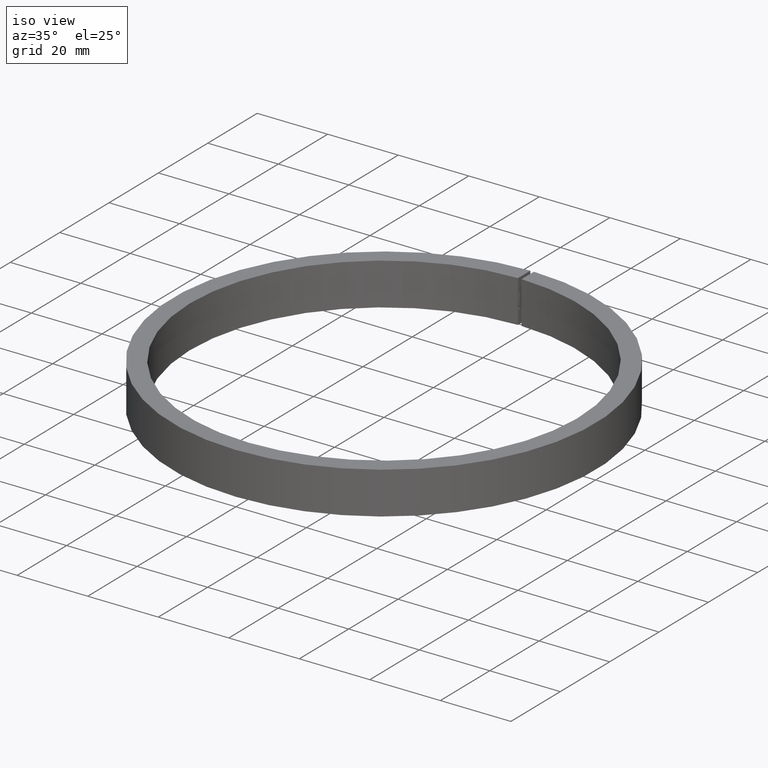
[diagram: clean part render]
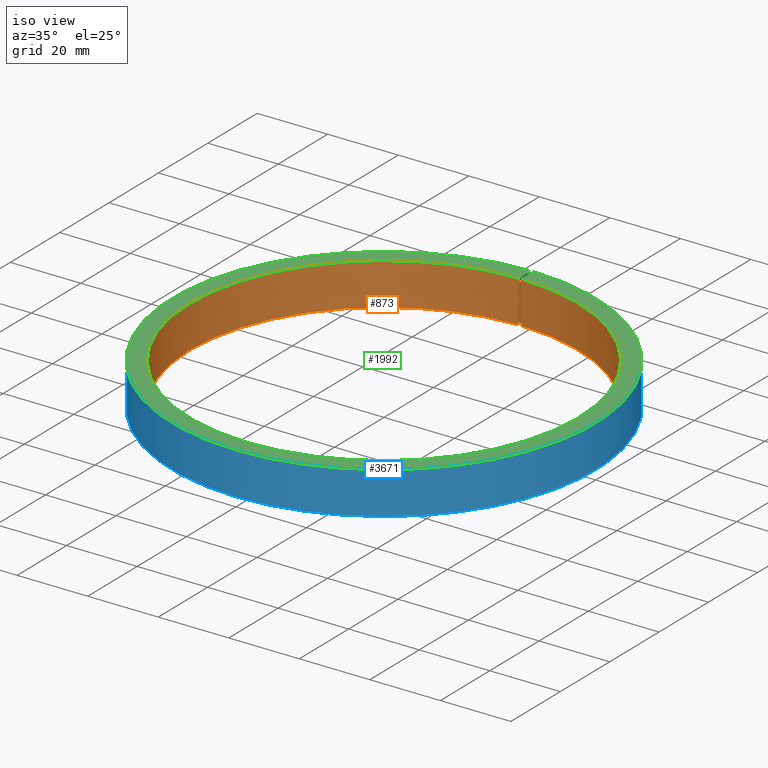
[diagram: same view with three faces highlighted in distinct colors, each labeled with its STEP entity id]
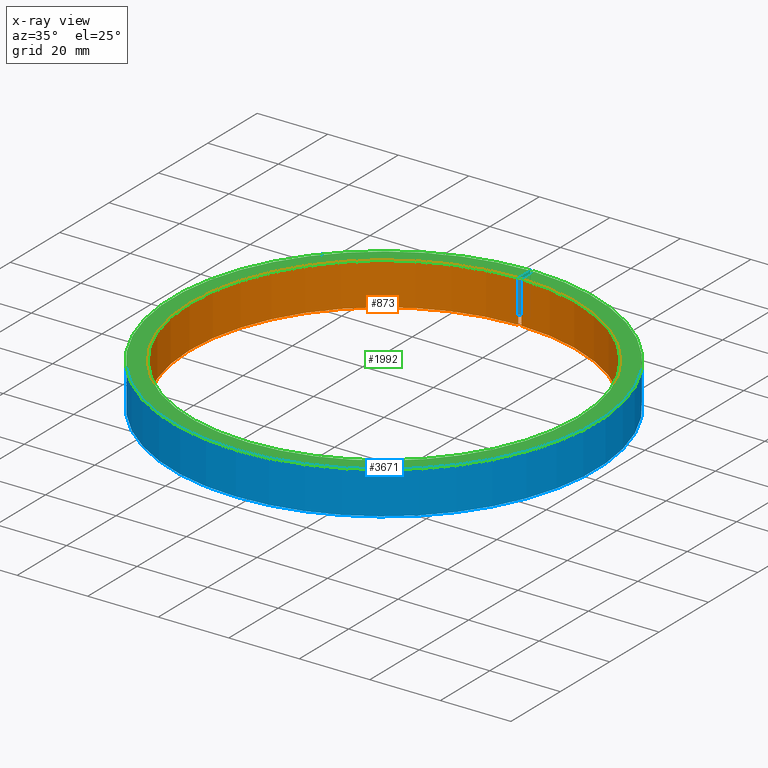
[diagram: x-ray of the same camera — body ghosted, the three highlighted faces saturated]
A machine part, iso view with three faces highlighted in distinct colors.
The next image is the same camera in x-ray (body ghosted, the three faces saturated) — at least one of them is partly hidden behind the body in this view.
Their STEP definitions:

[orange] entity #873 — the highlighted cylindrical surface (partial cylindrical patch) has radius 55 mm, axis along (-0, -0, -1).
#145 = CARTESIAN_POINT ( 'NONE',  ( 0.000000000000000000, 0.000000000000000000, -6.000000000000002665 ) ) ;
#377 = LINE ( 'NONE', #5961, #6549 ) ;
#696 = EDGE_CURVE ( 'NONE', #4806, #8284, #3166, .T. ) ;
#743 = CARTESIAN_POINT ( 'NONE',  ( 0.5000000000000000000, 54.99772722576815909, -6.000000000000003553 ) ) ;
#873 = ADVANCED_FACE ( 'NONE', ( #12154 ), #8318, .F. ) ;
#981 = EDGE_CURVE ( 'NONE', #4032, #4806, #377, .T. ) ;
#1344 = DIRECTION ( 'NONE',  ( -0.000000000000000000, -0.000000000000000000, 1.000000000000000000 ) ) ;
#2161 = ORIENTED_EDGE ( 'NONE', *, *, #5794, .T. ) ;
#2414 = CARTESIAN_POINT ( 'NONE',  ( -0.5000000000000000000, 54.99772722576815909, -6.000000000000003553 ) ) ;
#3003 = CIRCLE ( 'NONE', #4110, 55.00000000000000000 ) ;
#3166 = CIRCLE ( 'NONE', #11763, 55.00000000000000000 ) ;
#3668 = CARTESIAN_POINT ( 'NONE',  ( 0.000000000000000000, 0.000000000000000000, 0.000000000000000000 ) ) ;
#4032 = VERTEX_POINT ( 'NONE', #743 ) ;
#4110 = AXIS2_PLACEMENT_3D ( 'NONE', #145, #10375, #11471 ) ;
#4131 = CARTESIAN_POINT ( 'NONE',  ( 0.5000000000000000000, 54.99772722576815909, 5.999999999999997335 ) ) ;
#4621 = DIRECTION ( 'NONE',  ( -0.000000000000000000, -0.000000000000000000, -1.000000000000000000 ) ) ;
#4806 = VERTEX_POINT ( 'NONE', #4131 ) ;
#5385 = DIRECTION ( 'NONE',  ( -1.000000000000000000, 0.000000000000000000, 0.000000000000000000 ) ) ;
#5794 = EDGE_CURVE ( 'NONE', #4032, #12185, #3003, .T. ) ;
#5894 = CARTESIAN_POINT ( 'NONE',  ( -0.5000000000000000000, 54.99772722576815909, -6.000000000000003553 ) ) ;
#5961 = CARTESIAN_POINT ( 'NONE',  ( 0.5000000000000000000, 54.99772722576815909, -6.000000000000003553 ) ) ;
#6484 = VECTOR ( 'NONE', #7893, 1000.000000000000000 ) ;
#6549 = VECTOR ( 'NONE', #1344, 1000.000000000000000 ) ;
#6611 = DIRECTION ( 'NONE',  ( -1.000000000000000000, 0.000000000000000000, 0.000000000000000000 ) ) ;
#6867 = AXIS2_PLACEMENT_3D ( 'NONE', #3668, #4621, #6611 ) ;
#7893 = DIRECTION ( 'NONE',  ( -0.000000000000000000, -0.000000000000000000, 1.000000000000000000 ) ) ;
#8284 = VERTEX_POINT ( 'NONE', #8585 ) ;
#8318 = CYLINDRICAL_SURFACE ( 'NONE', #6867, 55.00000000000000000 ) ;
#8585 = CARTESIAN_POINT ( 'NONE',  ( -0.5000000000000000000, 54.99772722576815909, 5.999999999999997335 ) ) ;
#8787 = EDGE_CURVE ( 'NONE', #12185, #8284, #11492, .T. ) ;
#9727 = EDGE_LOOP ( 'NONE', ( #9785, #11371, #2161, #9902 ) ) ;
#9785 = ORIENTED_EDGE ( 'NONE', *, *, #696, .F. ) ;
#9902 = ORIENTED_EDGE ( 'NONE', *, *, #8787, .T. ) ;
#10115 = CARTESIAN_POINT ( 'NONE',  ( 0.000000000000000000, 0.000000000000000000, 5.999999999999997335 ) ) ;
#10375 = DIRECTION ( 'NONE',  ( -0.000000000000000000, -0.000000000000000000, -1.000000000000000000 ) ) ;
#11006 = DIRECTION ( 'NONE',  ( -0.000000000000000000, -0.000000000000000000, -1.000000000000000000 ) ) ;
#11371 = ORIENTED_EDGE ( 'NONE', *, *, #981, .F. ) ;
#11471 = DIRECTION ( 'NONE',  ( -1.000000000000000000, 0.000000000000000000, 0.000000000000000000 ) ) ;
#11492 = LINE ( 'NONE', #2414, #6484 ) ;
#11763 = AXIS2_PLACEMENT_3D ( 'NONE', #10115, #11006, #5385 ) ;
#12154 = FACE_OUTER_BOUND ( 'NONE', #9727, .T. ) ;
#12185 = VERTEX_POINT ( 'NONE', #5894 ) ;

[blue] entity #3671 — the highlighted cylindrical surface (partial cylindrical patch) has radius 60 mm, axis along (-0, -0, -1).
#91 = DIRECTION ( 'NONE',  ( -0.000000000000000000, -0.000000000000000000, -1.000000000000000000 ) ) ;
#581 = AXIS2_PLACEMENT_3D ( 'NONE', #10681, #5039, #11620 ) ;
#676 = LINE ( 'NONE', #5067, #2444 ) ;
#1047 = EDGE_CURVE ( 'NONE', #8450, #7820, #676, .T. ) ;
#1103 = VERTEX_POINT ( 'NONE', #6857 ) ;
#1199 = VECTOR ( 'NONE', #1446, 1000.000000000000000 ) ;
#1371 = EDGE_LOOP ( 'NONE', ( #2262, #6223, #7123, #2400 ) ) ;
#1446 = DIRECTION ( 'NONE',  ( -0.000000000000000000, -0.000000000000000000, 1.000000000000000000 ) ) ;
#1515 = CIRCLE ( 'NONE', #581, 60.00000000000000000 ) ;
#2262 = ORIENTED_EDGE ( 'NONE', *, *, #6374, .F. ) ;
#2400 = ORIENTED_EDGE ( 'NONE', *, *, #1047, .F. ) ;
#2444 = VECTOR ( 'NONE', #8834, 1000.000000000000000 ) ;
#2468 = DIRECTION ( 'NONE',  ( -1.000000000000000000, 0.000000000000000000, 0.000000000000000000 ) ) ;
#3671 = ADVANCED_FACE ( 'NONE', ( #7992 ), #3900, .T. ) ;
#3900 = CYLINDRICAL_SURFACE ( 'NONE', #10103, 60.00000000000000000 ) ;
#3964 = CARTESIAN_POINT ( 'NONE',  ( 0.000000000000000000, 0.000000000000000000, 5.999999999999996447 ) ) ;
#4172 = CARTESIAN_POINT ( 'NONE',  ( 0.5000000000000000000, 59.99791663049642665, -6.000000000000003553 ) ) ;
#4812 = DIRECTION ( 'NONE',  ( -1.000000000000000000, 0.000000000000000000, 0.000000000000000000 ) ) ;
#5039 = DIRECTION ( 'NONE',  ( -0.000000000000000000, -0.000000000000000000, -1.000000000000000000 ) ) ;
#5067 = CARTESIAN_POINT ( 'NONE',  ( -0.5000000000000000000, 59.99791663049642665, -6.000000000000003553 ) ) ;
#5254 = CARTESIAN_POINT ( 'NONE',  ( 0.5000000000000000000, 59.99791663049643375, 5.999999999999996447 ) ) ;
#6223 = ORIENTED_EDGE ( 'NONE', *, *, #9745, .T. ) ;
#6374 = EDGE_CURVE ( 'NONE', #1103, #8450, #1515, .T. ) ;
#6857 = CARTESIAN_POINT ( 'NONE',  ( 0.5000000000000000000, 59.99791663049642665, -6.000000000000003553 ) ) ;
#7123 = ORIENTED_EDGE ( 'NONE', *, *, #12059, .T. ) ;
#7820 = VERTEX_POINT ( 'NONE', #10338 ) ;
#7992 = FACE_OUTER_BOUND ( 'NONE', #1371, .T. ) ;
#8107 = CARTESIAN_POINT ( 'NONE',  ( 0.000000000000000000, 0.000000000000000000, 0.000000000000000000 ) ) ;
#8209 = AXIS2_PLACEMENT_3D ( 'NONE', #3964, #91, #4812 ) ;
#8356 = CIRCLE ( 'NONE', #8209, 60.00000000000000000 ) ;
#8450 = VERTEX_POINT ( 'NONE', #11875 ) ;
#8834 = DIRECTION ( 'NONE',  ( -0.000000000000000000, -0.000000000000000000, 1.000000000000000000 ) ) ;
#9745 = EDGE_CURVE ( 'NONE', #1103, #10484, #9846, .T. ) ;
#9846 = LINE ( 'NONE', #4172, #1199 ) ;
#10103 = AXIS2_PLACEMENT_3D ( 'NONE', #8107, #11873, #2468 ) ;
#10338 = CARTESIAN_POINT ( 'NONE',  ( -0.5000000000000000000, 59.99791663049642665, 5.999999999999997335 ) ) ;
#10484 = VERTEX_POINT ( 'NONE', #5254 ) ;
#10681 = CARTESIAN_POINT ( 'NONE',  ( 0.000000000000000000, 0.000000000000000000, -6.000000000000003553 ) ) ;
#11620 = DIRECTION ( 'NONE',  ( -1.000000000000000000, 0.000000000000000000, 0.000000000000000000 ) ) ;
#11873 = DIRECTION ( 'NONE',  ( -0.000000000000000000, -0.000000000000000000, -1.000000000000000000 ) ) ;
#11875 = CARTESIAN_POINT ( 'NONE',  ( -0.5000000000000000000, 59.99791663049643375, -6.000000000000003553 ) ) ;
#12059 = EDGE_CURVE ( 'NONE', #10484, #7820, #8356, .T. ) ;

[green] entity #1992 — the highlighted planar face has unit normal (-0, 0, -1).
#24 = DIRECTION ( 'NONE',  ( -0.000000000000000000, 0.000000000000000000, -1.000000000000000000 ) ) ;
#91 = DIRECTION ( 'NONE',  ( -0.000000000000000000, -0.000000000000000000, -1.000000000000000000 ) ) ;
#696 = EDGE_CURVE ( 'NONE', #4806, #8284, #3166, .T. ) ;
#1428 = CARTESIAN_POINT ( 'NONE',  ( -0.5000000000000000000, 0.000000000000000000, 5.999999999999997335 ) ) ;
#1477 = VECTOR ( 'NONE', #1644, 1000.000000000000000 ) ;
#1644 = DIRECTION ( 'NONE',  ( 0.000000000000000000, 1.000000000000000000, -0.000000000000000000 ) ) ;
#1992 = ADVANCED_FACE ( 'NONE', ( #2301 ), #2861, .F. ) ;
#2259 = ORIENTED_EDGE ( 'NONE', *, *, #696, .T. ) ;
#2301 = FACE_OUTER_BOUND ( 'NONE', #11965, .T. ) ;
#2861 = PLANE ( 'NONE',  #11506 ) ;
#2977 = DIRECTION ( 'NONE',  ( 0.000000000000000000, 1.000000000000000000, -0.000000000000000000 ) ) ;
#3166 = CIRCLE ( 'NONE', #11763, 55.00000000000000000 ) ;
#3792 = DIRECTION ( 'NONE',  ( -1.000000000000000000, 0.000000000000000000, 0.000000000000000000 ) ) ;
#3964 = CARTESIAN_POINT ( 'NONE',  ( 0.000000000000000000, 0.000000000000000000, 5.999999999999996447 ) ) ;
#4131 = CARTESIAN_POINT ( 'NONE',  ( 0.5000000000000000000, 54.99772722576815909, 5.999999999999997335 ) ) ;
#4608 = EDGE_CURVE ( 'NONE', #8284, #7820, #6065, .T. ) ;
#4806 = VERTEX_POINT ( 'NONE', #4131 ) ;
#4812 = DIRECTION ( 'NONE',  ( -1.000000000000000000, 0.000000000000000000, 0.000000000000000000 ) ) ;
#5254 = CARTESIAN_POINT ( 'NONE',  ( 0.5000000000000000000, 59.99791663049643375, 5.999999999999996447 ) ) ;
#5385 = DIRECTION ( 'NONE',  ( -1.000000000000000000, 0.000000000000000000, 0.000000000000000000 ) ) ;
#5643 = CARTESIAN_POINT ( 'NONE',  ( 0.000000000000000000, -55.00000000000000000, 5.999999999999996447 ) ) ;
#6065 = LINE ( 'NONE', #1428, #7540 ) ;
#6812 = ORIENTED_EDGE ( 'NONE', *, *, #12059, .F. ) ;
#7540 = VECTOR ( 'NONE', #2977, 1000.000000000000000 ) ;
#7820 = VERTEX_POINT ( 'NONE', #10338 ) ;
#8209 = AXIS2_PLACEMENT_3D ( 'NONE', #3964, #91, #4812 ) ;
#8284 = VERTEX_POINT ( 'NONE', #8585 ) ;
#8356 = CIRCLE ( 'NONE', #8209, 60.00000000000000000 ) ;
#8585 = CARTESIAN_POINT ( 'NONE',  ( -0.5000000000000000000, 54.99772722576815909, 5.999999999999997335 ) ) ;
#10115 = CARTESIAN_POINT ( 'NONE',  ( 0.000000000000000000, 0.000000000000000000, 5.999999999999997335 ) ) ;
#10220 = ORIENTED_EDGE ( 'NONE', *, *, #11108, .F. ) ;
#10338 = CARTESIAN_POINT ( 'NONE',  ( -0.5000000000000000000, 59.99791663049642665, 5.999999999999997335 ) ) ;
#10484 = VERTEX_POINT ( 'NONE', #5254 ) ;
#11006 = DIRECTION ( 'NONE',  ( -0.000000000000000000, -0.000000000000000000, -1.000000000000000000 ) ) ;
#11058 = ORIENTED_EDGE ( 'NONE', *, *, #4608, .T. ) ;
#11108 = EDGE_CURVE ( 'NONE', #4806, #10484, #11173, .T. ) ;
#11173 = LINE ( 'NONE', #11941, #1477 ) ;
#11506 = AXIS2_PLACEMENT_3D ( 'NONE', #5643, #24, #3792 ) ;
#11763 = AXIS2_PLACEMENT_3D ( 'NONE', #10115, #11006, #5385 ) ;
#11941 = CARTESIAN_POINT ( 'NONE',  ( 0.5000000000000000000, 0.000000000000000000, 5.999999999999997335 ) ) ;
#11965 = EDGE_LOOP ( 'NONE', ( #6812, #10220, #2259, #11058 ) ) ;
#12059 = EDGE_CURVE ( 'NONE', #10484, #7820, #8356, .T. ) ;